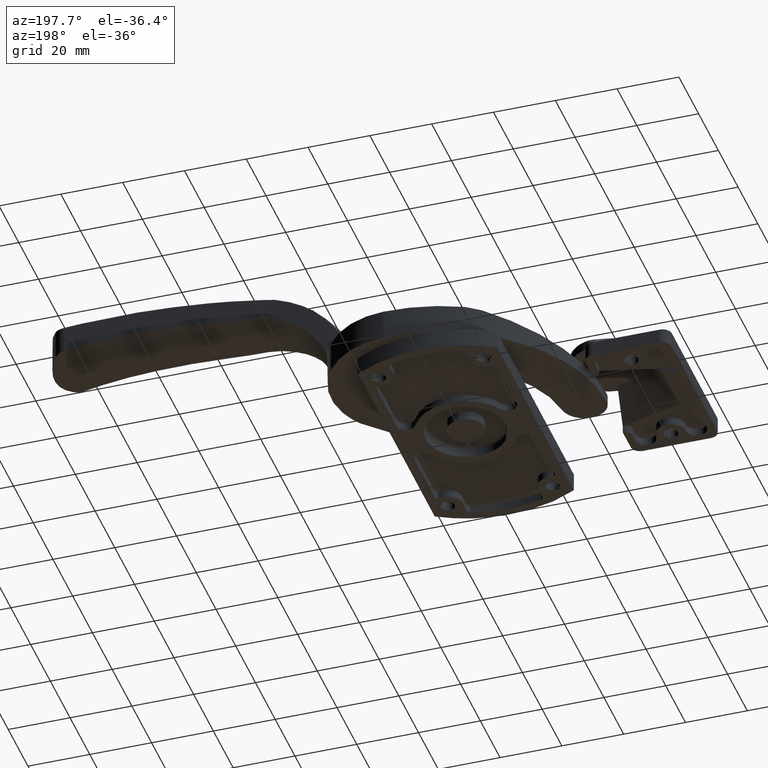
[diagram: clean part render]
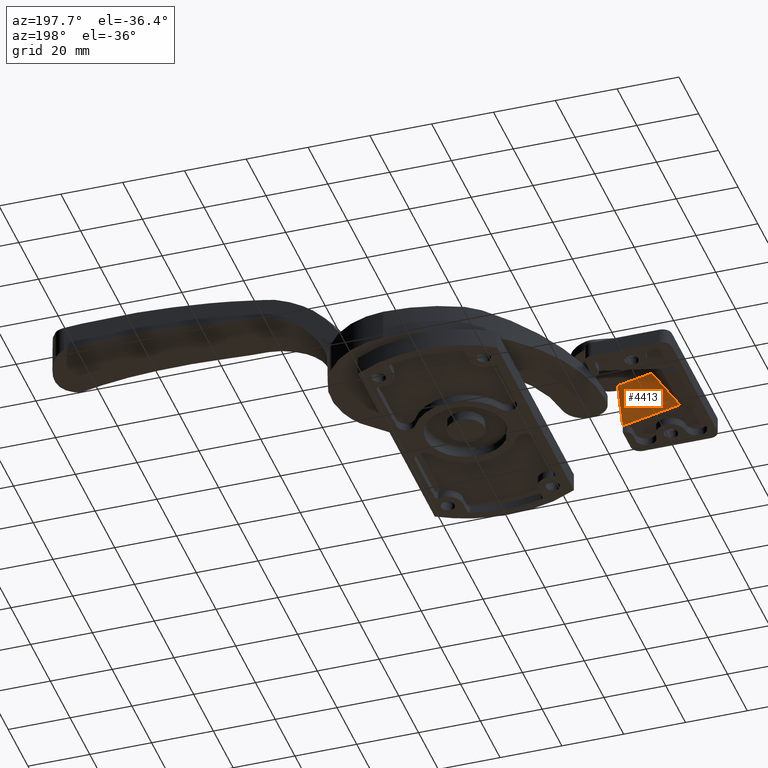
[diagram: same view with one face highlighted and labeled with its STEP entity id]
A machine part, auxiliary view. The second image highlights one B-rep face of the part: STEP entity #4413.
In plain terms, the highlighted face is a freeform B-spline surface patch.
Its self-contained STEP definition (entity closure, byte-faithful):
#2423=CARTESIAN_POINT('',(-66.088194915378097,-9.819908408735921,2.499999999999960));
#2424=VERTEX_POINT('',#2423);
#3329=CARTESIAN_POINT('',(-46.0,-9.493105185733320,14.0));
#3330=VERTEX_POINT('',#3329);
#3336=CARTESIAN_POINT('',(-58.035808043355800,-6.475952998261979,14.0));
#3337=VERTEX_POINT('',#3336);
#3338=CARTESIAN_POINT('',(-46.0,-9.493105185733320,14.0));
#3339=CARTESIAN_POINT('',(-58.035808043355800,-6.475952998261979,14.0));
#3340=QUASI_UNIFORM_CURVE('',1,(#3338,#3339),.UNSPECIFIED.,.F.,.U.);
#3341=EDGE_CURVE('',#3330,#3337,#3340,.T.);
#4355=CARTESIAN_POINT('',(-58.035808043355800,-6.475952998261979,14.0));
#4356=CARTESIAN_POINT('',(-66.088194915378097,-9.819908408735921,2.499999999999960));
#4357=QUASI_UNIFORM_CURVE('',1,(#4355,#4356),.UNSPECIFIED.,.F.,.U.);
#4358=EDGE_CURVE('',#3337,#2424,#4357,.T.);
#4392=CARTESIAN_POINT('',(-67.091601155334402,-4.316516126842273,13.762643296175190));
#4393=CARTESIAN_POINT('',(-67.091601155334402,-10.807488623744380,-0.157291438972828));
#4394=CARTESIAN_POINT('',(-44.996594119248570,-8.866056501798314,15.884128921594060));
#4395=CARTESIAN_POINT('',(-44.996594119248570,-15.357028998700430,1.964194186446045));
#4396=B_SPLINE_SURFACE_WITH_KNOTS('',1,1,((#4392,#4394),(#4393,#4395)),.UNSPECIFIED.,.F.,.F.,.U.,(2,2),(2,2),(0.0,15.358948759154060),(0.0,22.658074825697270),.UNSPECIFIED.);
#4397=ORIENTED_EDGE('',*,*,#4358,.F.);
#4398=ORIENTED_EDGE('',*,*,#3341,.F.);
#4399=CARTESIAN_POINT('',(-46.0,-14.855643526225141,2.499999999999960));
#4400=VERTEX_POINT('',#4399);
#4401=CARTESIAN_POINT('',(-46.0,-14.855643526225141,2.499999999999960));
#4402=CARTESIAN_POINT('',(-46.0,-9.493105185733320,14.0));
#4403=QUASI_UNIFORM_CURVE('',1,(#4401,#4402),.UNSPECIFIED.,.F.,.U.);
#4404=EDGE_CURVE('',#4400,#3330,#4403,.T.);
#4405=ORIENTED_EDGE('',*,*,#4404,.F.);
#4406=CARTESIAN_POINT('',(-66.088194915378097,-9.819908408735921,2.499999999999960));
#4407=CARTESIAN_POINT('',(-46.0,-14.855643526225141,2.499999999999960));
#4408=QUASI_UNIFORM_CURVE('',1,(#4406,#4407),.UNSPECIFIED.,.F.,.U.);
#4409=EDGE_CURVE('',#2424,#4400,#4408,.T.);
#4410=ORIENTED_EDGE('',*,*,#4409,.F.);
#4411=EDGE_LOOP('',(#4397,#4398,#4405,#4410));
#4412=FACE_OUTER_BOUND('',#4411,.T.);
#4413=ADVANCED_FACE('',(#4412),#4396,.F.);